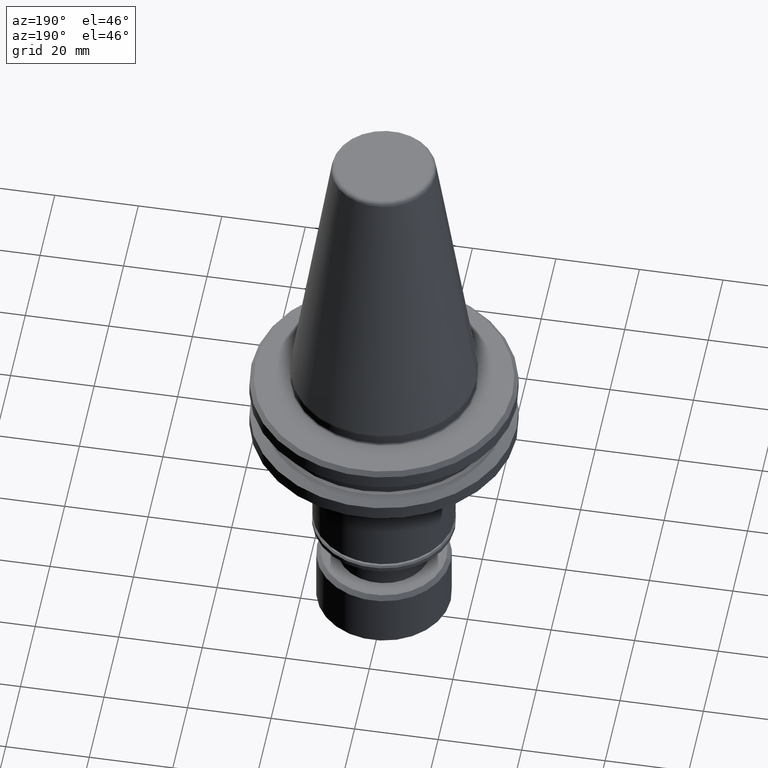
[diagram: clean part render]
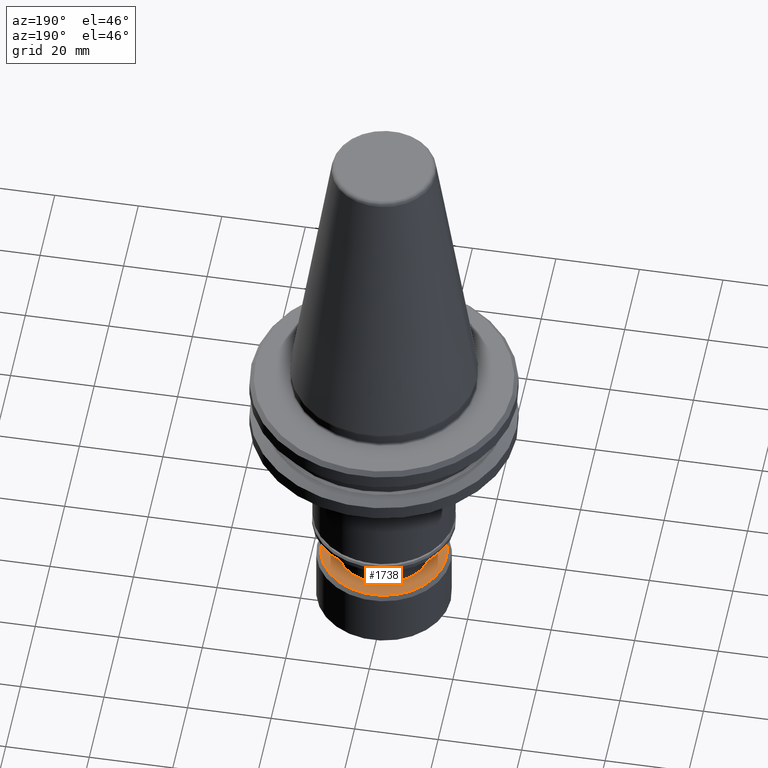
[diagram: same view with one face highlighted and labeled with its STEP entity id]
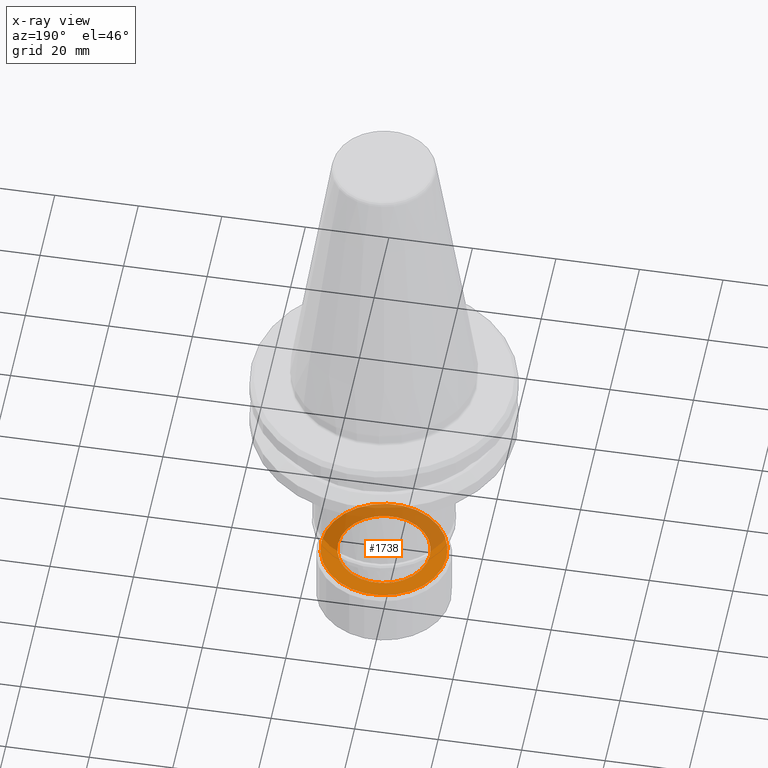
[diagram: x-ray of the same camera — body ghosted, the highlighted face saturated]
A machine part, auxiliary view. The second image highlights one B-rep face of the part: STEP entity #1738.
The next image is the same camera in x-ray: the body ghosted, the highlighted face saturated — about 47% of this face is hidden behind the body in this view.
In plain terms, the highlighted planar face has unit normal (0, 0, 1).
Its self-contained STEP definition (entity closure, byte-faithful):
#57 = CARTESIAN_POINT ( 'NONE',  ( 0.0000000000000000000, 0.0000000000000000000, -61.50000000000000000 ) ) ;
#97 = DIRECTION ( 'NONE',  ( 0.0000000000000000000, 0.0000000000000000000, 1.000000000000000000 ) ) ;
#156 = CARTESIAN_POINT ( 'NONE',  ( 11.00000000000000000, 0.0000000000000000000, -61.50000000000000000 ) ) ;
#223 = AXIS2_PLACEMENT_3D ( 'NONE', #1101, #1100, #1099 ) ;
#434 = VERTEX_POINT ( 'NONE', #1156 ) ;
#456 = DIRECTION ( 'NONE',  ( 1.000000000000000000, 0.0000000000000000000, 0.0000000000000000000 ) ) ;
#487 = EDGE_CURVE ( 'NONE', #994, #651, #1768, .T. ) ;
#551 = DIRECTION ( 'NONE',  ( 0.0000000000000000000, 0.0000000000000000000, 1.000000000000000000 ) ) ;
#578 = CARTESIAN_POINT ( 'NONE',  ( 15.00000000000000000, 1.898202538678397200E-015, -61.50000000000000000 ) ) ;
#651 = VERTEX_POINT ( 'NONE', #936 ) ;
#671 = FACE_BOUND ( 'NONE', #1233, .T. ) ;
#723 = EDGE_CURVE ( 'NONE', #651, #994, #2029, .T. ) ;
#829 = DIRECTION ( 'NONE',  ( -1.000000000000000000, 0.0000000000000000000, 0.0000000000000000000 ) ) ;
#831 = DIRECTION ( 'NONE',  ( -0.0000000000000000000, -0.0000000000000000000, 1.000000000000000000 ) ) ;
#832 = CARTESIAN_POINT ( 'NONE',  ( 0.0000000000000000000, 0.0000000000000000000, -61.50000000000000000 ) ) ;
#842 = DIRECTION ( 'NONE',  ( 1.000000000000000000, 0.0000000000000000000, -0.0000000000000000000 ) ) ;
#936 = CARTESIAN_POINT ( 'NONE',  ( -15.00000000000000000, 0.0000000000000000000, -61.50000000000000000 ) ) ;
#994 = VERTEX_POINT ( 'NONE', #578 ) ;
#1058 = DIRECTION ( 'NONE',  ( 0.0000000000000000000, 0.0000000000000000000, 1.000000000000000000 ) ) ;
#1099 = DIRECTION ( 'NONE',  ( -1.000000000000000000, 0.0000000000000000000, 0.0000000000000000000 ) ) ;
#1100 = DIRECTION ( 'NONE',  ( -0.0000000000000000000, -0.0000000000000000000, 1.000000000000000000 ) ) ;
#1101 = CARTESIAN_POINT ( 'NONE',  ( 0.0000000000000000000, 0.0000000000000000000, -61.50000000000000000 ) ) ;
#1104 = ORIENTED_EDGE ( 'NONE', *, *, #1997, .F. ) ;
#1156 = CARTESIAN_POINT ( 'NONE',  ( -11.00000000000000000, 1.347111479062088400E-015, -61.50000000000000000 ) ) ;
#1191 = ORIENTED_EDGE ( 'NONE', *, *, #723, .T. ) ;
#1192 = CARTESIAN_POINT ( 'NONE',  ( 0.0000000000000000000, -11.00000000000000000, -61.50000000000000000 ) ) ;
#1233 = EDGE_LOOP ( 'NONE', ( #1104, #1870 ) ) ;
#1257 = CIRCLE ( 'NONE', #1902, 11.00000000000000000 ) ;
#1268 = CARTESIAN_POINT ( 'NONE',  ( 0.0000000000000000000, 0.0000000000000000000, -61.50000000000000000 ) ) ;
#1363 = CIRCLE ( 'NONE', #1475, 11.00000000000000000 ) ;
#1475 = AXIS2_PLACEMENT_3D ( 'NONE', #1268, #1058, #1775 ) ;
#1495 = EDGE_LOOP ( 'NONE', ( #1191, #1652 ) ) ;
#1624 = FACE_OUTER_BOUND ( 'NONE', #1495, .T. ) ;
#1650 = PLANE ( 'NONE',  #1774 ) ;
#1652 = ORIENTED_EDGE ( 'NONE', *, *, #487, .T. ) ;
#1654 = VERTEX_POINT ( 'NONE', #156 ) ;
#1688 = AXIS2_PLACEMENT_3D ( 'NONE', #832, #831, #829 ) ;
#1718 = EDGE_CURVE ( 'NONE', #434, #1654, #1257, .T. ) ;
#1738 = ADVANCED_FACE ( 'NONE', ( #671, #1624 ), #1650, .T. ) ;
#1768 = CIRCLE ( 'NONE', #223, 15.00000000000000000 ) ;
#1774 = AXIS2_PLACEMENT_3D ( 'NONE', #1192, #551, #842 ) ;
#1775 = DIRECTION ( 'NONE',  ( 1.000000000000000000, 0.0000000000000000000, 0.0000000000000000000 ) ) ;
#1870 = ORIENTED_EDGE ( 'NONE', *, *, #1718, .F. ) ;
#1902 = AXIS2_PLACEMENT_3D ( 'NONE', #57, #97, #456 ) ;
#1997 = EDGE_CURVE ( 'NONE', #1654, #434, #1363, .T. ) ;
#2029 = CIRCLE ( 'NONE', #1688, 15.00000000000000000 ) ;